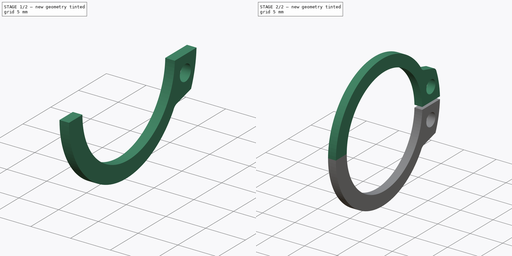
[diagram: build sequence overview — one tinted view per stage of 2, left to right]
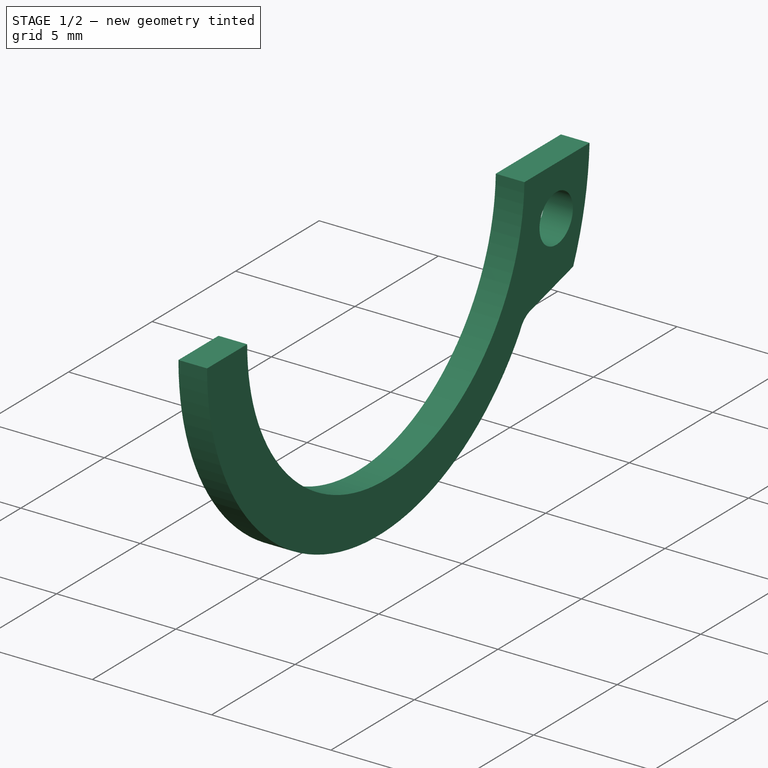
[diagram: stage 1 of 2 — iso view after this stage's code; geometry added in this stage tinted green]
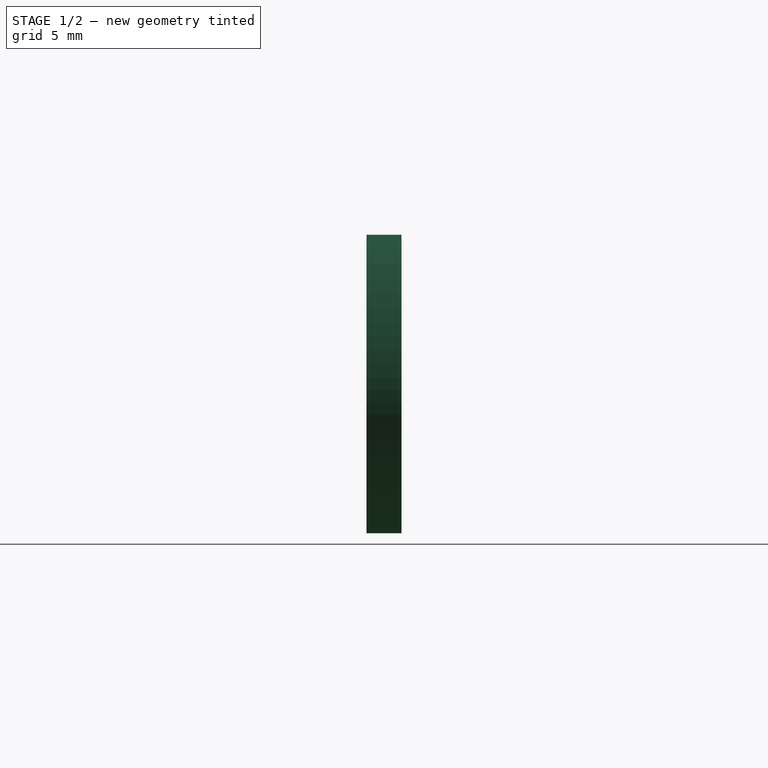
[diagram: stage 1 of 2 — front view after this stage's code; geometry added in this stage tinted green]
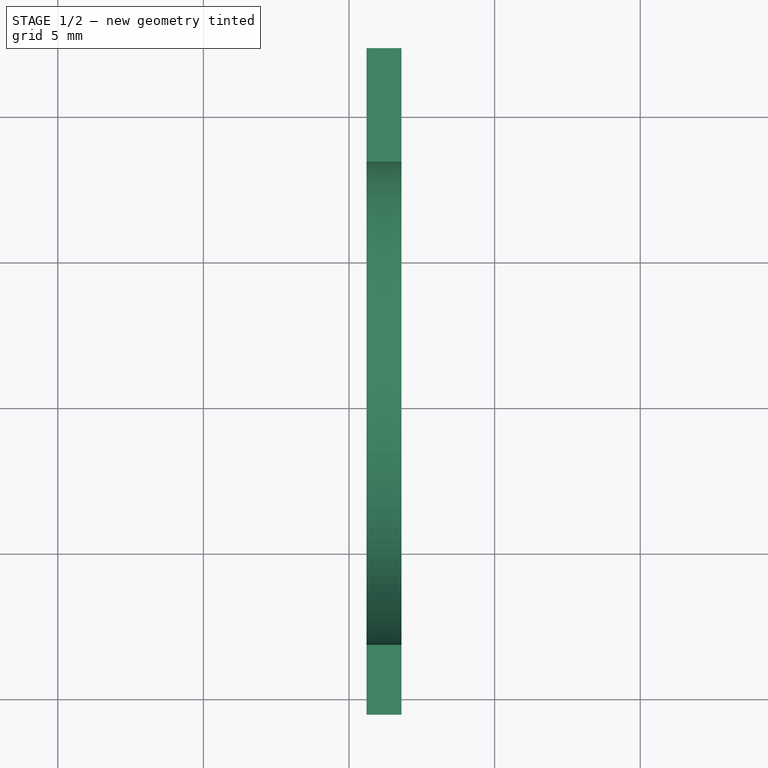
[diagram: stage 1 of 2 — top view after this stage's code; geometry added in this stage tinted green]
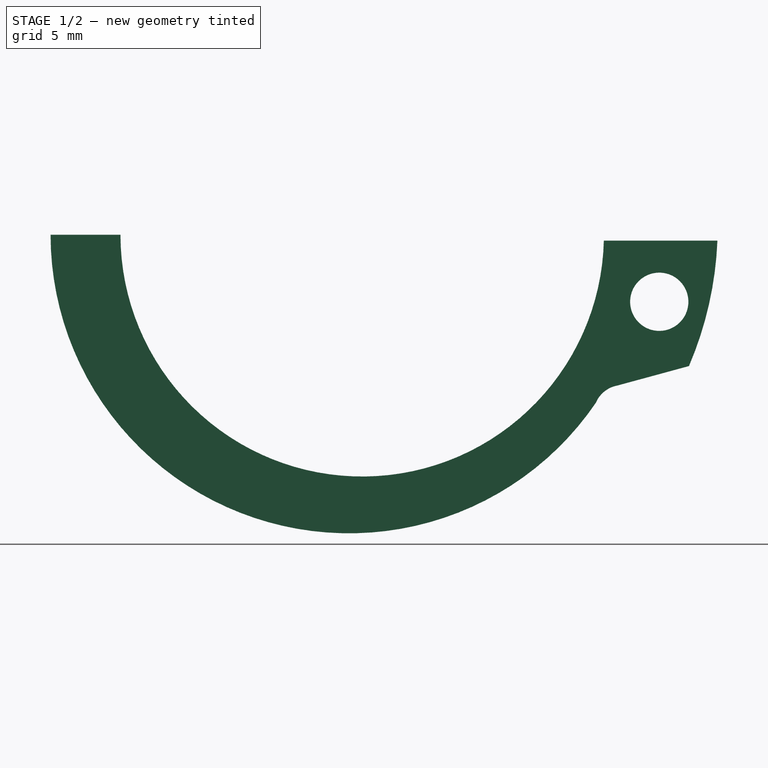
[diagram: stage 1 of 2 — right view after this stage's code; geometry added in this stage tinted green]
FCSTD DOCUMENT  (FreeCAD 0.15R4671 (Git))
Label: DIN471_CLASS_A_M18RetainingRings
License: CreativeCommons Attribution-ShareAlike
LicenseURL: http://creativecommons.org/licenses/by-sa/4.0/
objects: Sketcher::SketchObject×1, PartDesign::Pad×1, PartDesign::Fillet×1, Part::Mirroring×1, Part::MultiFuse×1
note: 6 computed .brp shape members not serialized (recipe doc carries the construction recipe); baked Part::Feature solids carry a one-line shape summary decoded from their .brp

FEATURE [Sketcher::SketchObject] Sketch
  Placement = pos=(0.6,0,0) rot=(0.57735,0.57735,0.57735;2.0944rad)
  sketch-geometry (8):
    g0: Circle CenterX=10.2 CenterY=2.3 CenterZ=0 NormalX=0 NormalY=0 NormalZ=1 Radius=1
    g1: ArcOfCircle CenterX=0.00794188 CenterY=-0.302472 CenterZ=0 NormalX=0 NormalY=0 NormalZ=1 Radius=12.2 StartAngle=0.0411979 EndAngle=0.405314
    g2: LineSegment StartX=8.29759 StartY=0.2 StartZ=0 EndX=12.1976 EndY=0.2 EndZ=0
    g3: ArcOfCircle CenterX=0 CenterY=0 CenterZ=0 NormalX=0 NormalY=0 NormalZ=1 Radius=8.3 StartAngle=0.0240987 EndAngle=3.14159
    g4: ArcOfCircle CenterX=-0.45 CenterY=0 CenterZ=0 NormalX=0 NormalY=0 NormalZ=1 Radius=10.25 StartAngle=0.597715 EndAngle=3.14159
    g5: LineSegment StartX=-10.7 StartY=0 StartZ=0 EndX=-8.3 EndY=0 EndZ=0
    g6: LineSegment StartX=8.76621 StartY=5.17503 StartZ=0 EndX=11.2195 EndY=4.50808 EndZ=0
    g7: ArcOfCircle CenterX=8.94329 CenterY=6.15923 CenterZ=0 NormalX=0 NormalY=0 NormalZ=1 Radius=1 StartAngle=3.54329 EndAngle=4.53437
  constraints (27):
    c: Coincident(g2,g1)
    c: Coincident(g3,g2)
    c: Coincident(g3,g-1)
    c: PointOnObject(g4,g-1)
    c: PointOnObject(g4,g-1)
    c: Coincident(g5,g4)
    c: Coincident(g5,g3)
    c: Coincident(g1,g6)
    c: Coincident(g7,g4)
    c: Coincident(g7,g6)
    c: DistanceX(g5) = 2.4
    c: Radius(g3) = 8.3
    c: Radius(g4) = 10.25
    c: Radius(g7) = 1
    c: DistanceX(g2) = 3.9
    c: Radius(g1) = 12.2
    c: DistanceY(g-1,g2) = 0.2
    c: DistanceY(g-1,g1) = 0.2
    c: DistanceY(g-1,g0) = 2.3
    c: DistanceX(g-1,g0) = 10.2
    c: Horizontal(g5)
    c: DistanceX(g-1,g4) = 8.02289
    c: DistanceX(g-1,g6) = 8.76621
    c: DistanceX(g6) = 2.45327
    c: DistanceY(g-1,g1) = 4.50808
    c: DistanceY(g-1,g6) = 5.17503
    c: Radius(g0) = 1
FEATURE [PartDesign::Pad] Pad
  Length = 1.2
  Length2 = 100
  Placement = pos=(0.6,0,0) rot=(0.57735,0.57735,0.57735;2.0944rad)
  Sketch = -> Sketch
  Type = 0
FEATURE [Part::Mirroring] Part__Mirroring  label="Pad (Mirror #1)"
  Base = (0,0,0)
  Normal = (0,0,1)
  Source = -> Pad
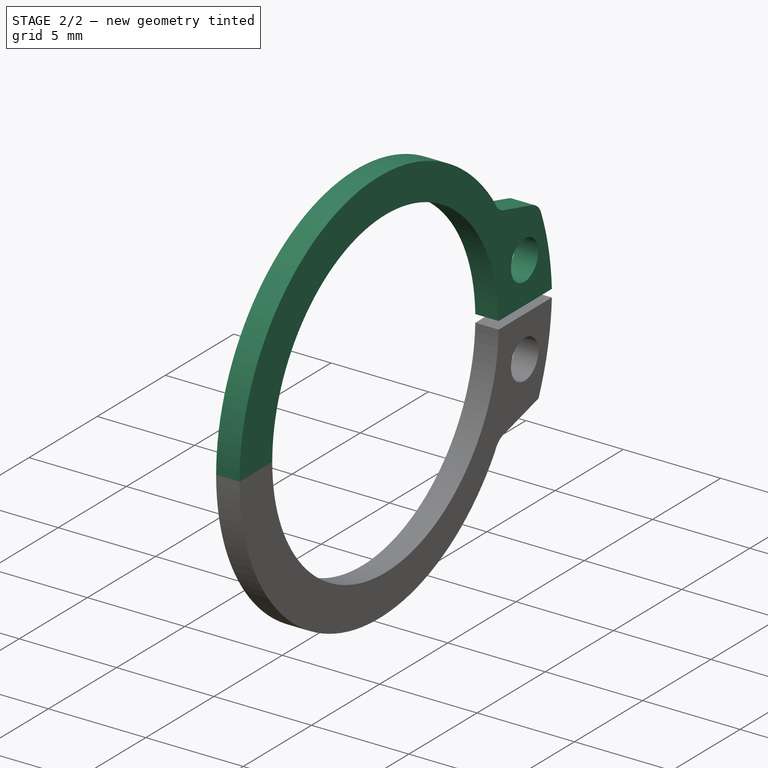
[diagram: stage 2 of 2 — iso view after this stage's code; geometry added in this stage tinted green]
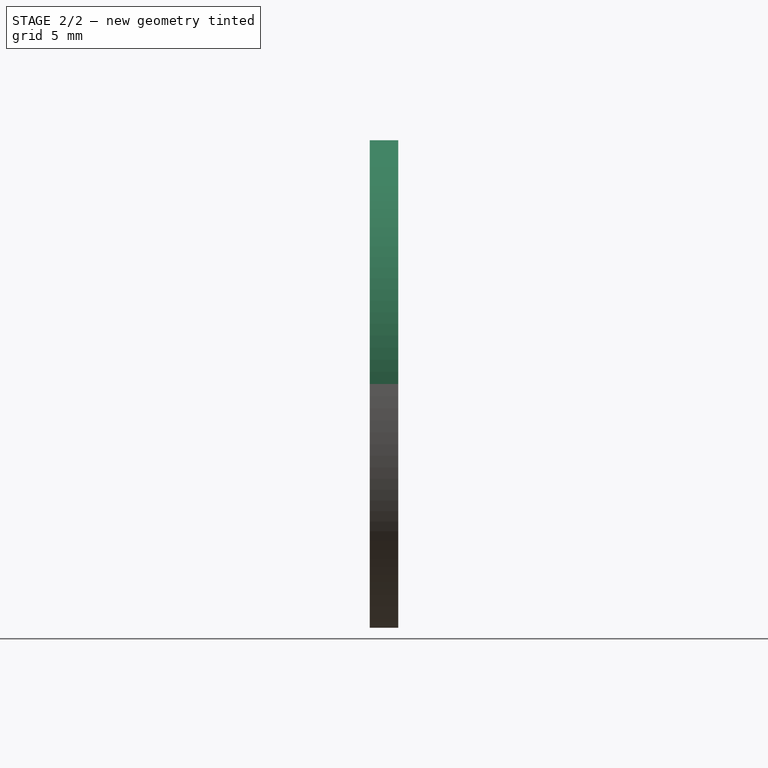
[diagram: stage 2 of 2 — front view after this stage's code; geometry added in this stage tinted green]
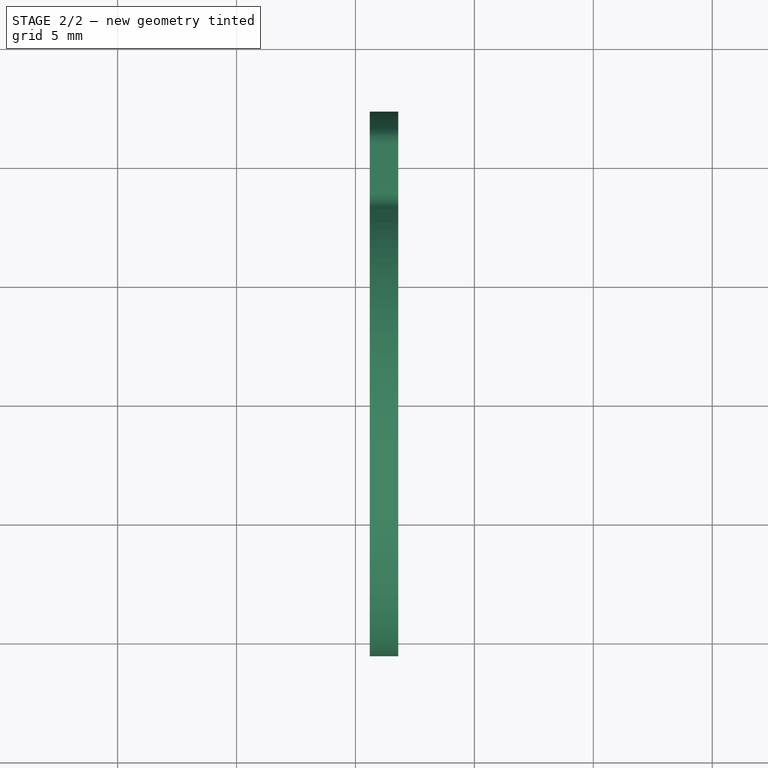
[diagram: stage 2 of 2 — top view after this stage's code; geometry added in this stage tinted green]
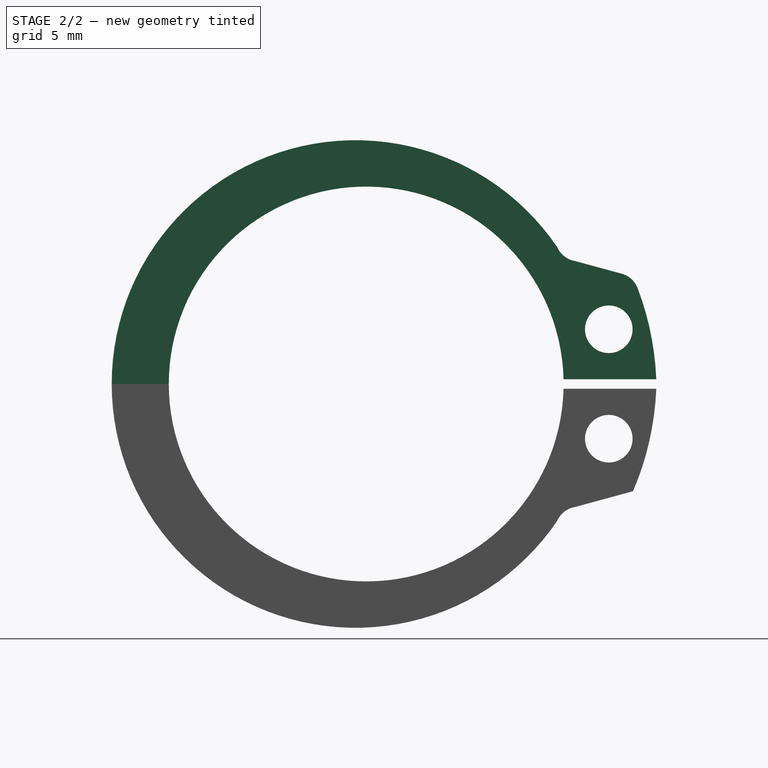
[diagram: stage 2 of 2 — right view after this stage's code; geometry added in this stage tinted green]
FEATURE [PartDesign::Fillet] Fillet
  Base = -> Pad [Edge14]
  Placement = pos=(0.6,0,0) rot=(0.57735,0.57735,0.57735;2.0944rad)
  Radius = 1
FEATURE [Part::MultiFuse] Fusion
  Shapes = -> [Part__Mirroring,Fillet]
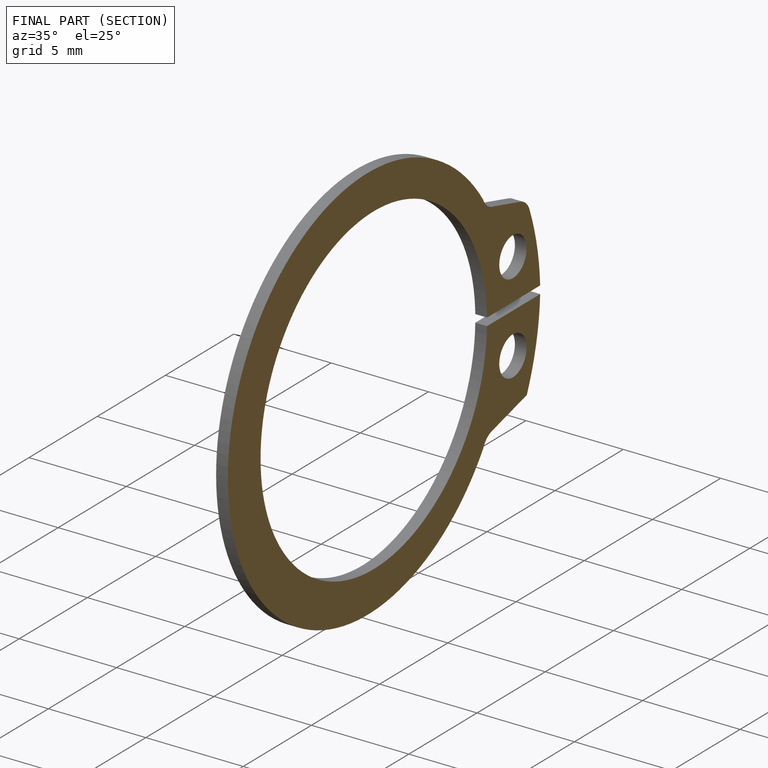
[diagram: finished part — half-section view (interior)]
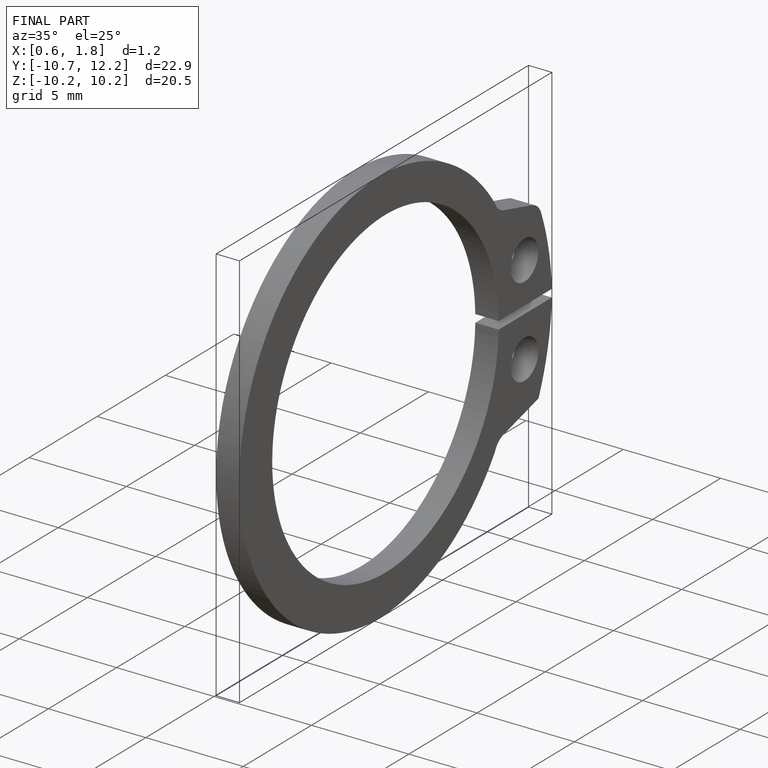
[diagram: finished part — iso view with bounding-box wireframe]
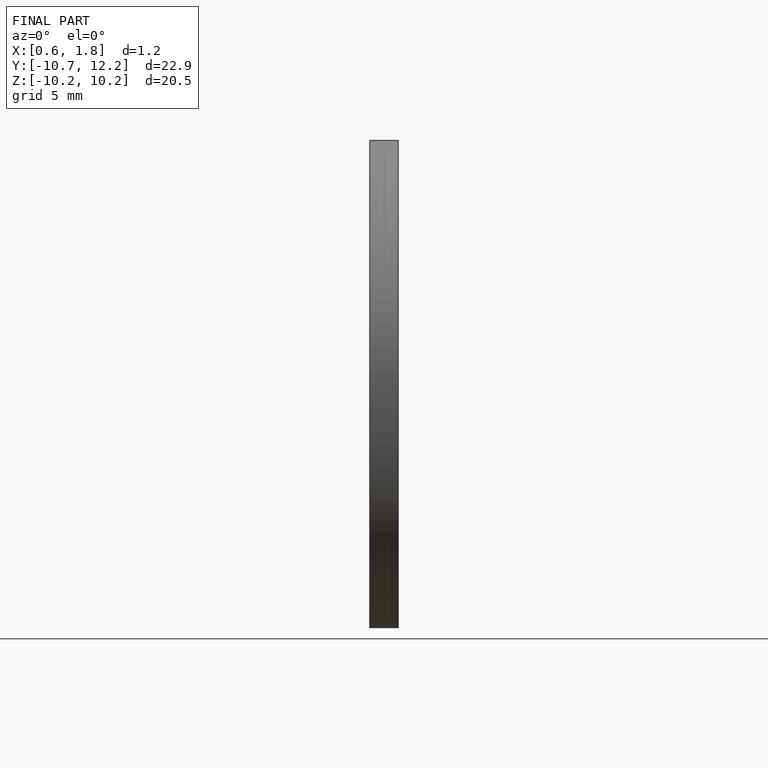
[diagram: finished part — front view with bounding-box wireframe]
